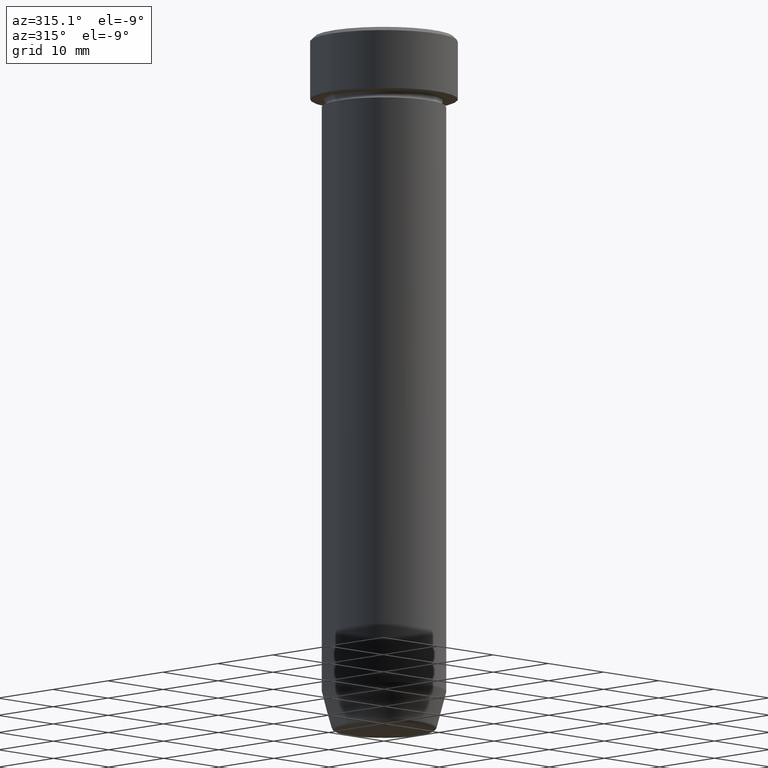
[diagram: clean part render]
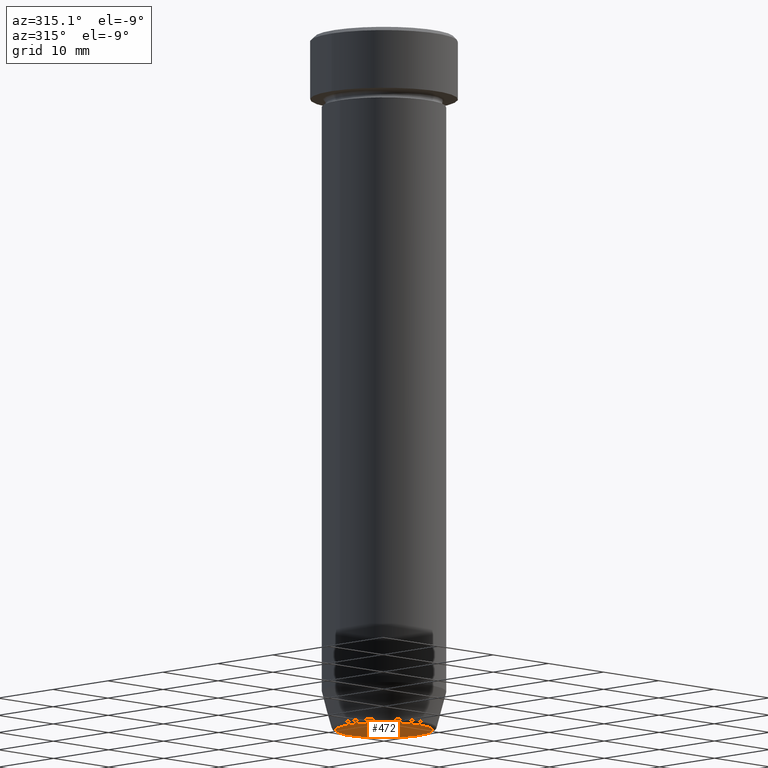
[diagram: same view with one face highlighted and labeled with its STEP entity id]
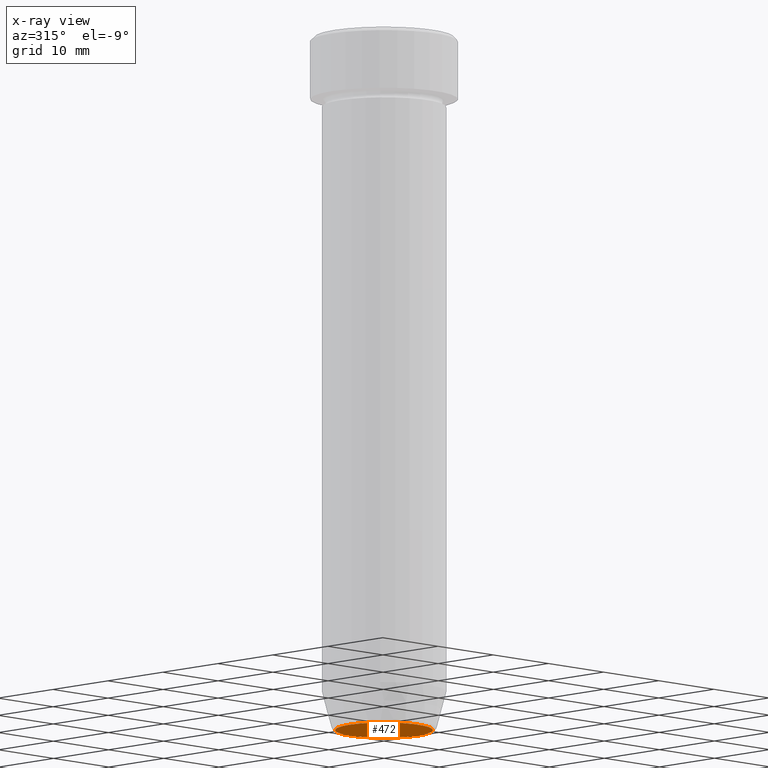
[diagram: x-ray of the same camera — body ghosted, the highlighted face saturated]
A machine part, auxiliary view. The second image highlights one B-rep face of the part: STEP entity #472.
The next image is the same camera in x-ray: the body ghosted, the highlighted face saturated — about 0% of this face is hidden behind the body in this view.
In plain terms, the highlighted planar face has unit normal (0, -0, 1).
Its self-contained STEP definition (entity closure, byte-faithful):
#27 = VERTEX_POINT ( 'NONE', #196 ) ;
#36 = AXIS2_PLACEMENT_3D ( 'NONE', #475, #66, #417 ) ;
#52 = EDGE_LOOP ( 'NONE', ( #113, #343 ) ) ;
#66 = DIRECTION ( 'NONE',  ( 0.000000000000000000, -0.000000000000000000, 1.000000000000000000 ) ) ;
#86 = EDGE_CURVE ( 'NONE', #373, #27, #440, .T. ) ;
#113 = ORIENTED_EDGE ( 'NONE', *, *, #433, .T. ) ;
#169 = AXIS2_PLACEMENT_3D ( 'NONE', #448, #447, #300 ) ;
#187 = AXIS2_PLACEMENT_3D ( 'NONE', #505, #333, #234 ) ;
#191 = CARTESIAN_POINT ( 'NONE',  ( -6.276590543854900339, 7.982336011935116411E-16, -90.00000000000000000 ) ) ;
#196 = CARTESIAN_POINT ( 'NONE',  ( 6.276590543854900339, 0.000000000000000000, -90.00000000000000000 ) ) ;
#234 = DIRECTION ( 'NONE',  ( 1.000000000000000000, 0.000000000000000000, 0.000000000000000000 ) ) ;
#300 = DIRECTION ( 'NONE',  ( 1.000000000000000000, 0.000000000000000000, 0.000000000000000000 ) ) ;
#333 = DIRECTION ( 'NONE',  ( 0.000000000000000000, 0.000000000000000000, -1.000000000000000000 ) ) ;
#343 = ORIENTED_EDGE ( 'NONE', *, *, #86, .T. ) ;
#368 = CIRCLE ( 'NONE', #187, 6.276590543854900339 ) ;
#373 = VERTEX_POINT ( 'NONE', #191 ) ;
#417 = DIRECTION ( 'NONE',  ( 1.000000000000000000, 0.000000000000000000, 0.000000000000000000 ) ) ;
#430 = FACE_OUTER_BOUND ( 'NONE', #52, .T. ) ;
#433 = EDGE_CURVE ( 'NONE', #27, #373, #368, .T. ) ;
#440 = CIRCLE ( 'NONE', #169, 6.276590543854900339 ) ;
#447 = DIRECTION ( 'NONE',  ( 0.000000000000000000, 0.000000000000000000, -1.000000000000000000 ) ) ;
#448 = CARTESIAN_POINT ( 'NONE',  ( 0.000000000000000000, 0.000000000000000000, -90.00000000000000000 ) ) ;
#472 = ADVANCED_FACE ( 'NONE', ( #430 ), #522, .F. ) ;
#475 = CARTESIAN_POINT ( 'NONE',  ( 0.000000000000000000, 4.898587196589413815E-15, -90.00000000000000000 ) ) ;
#505 = CARTESIAN_POINT ( 'NONE',  ( 0.000000000000000000, 0.000000000000000000, -90.00000000000000000 ) ) ;
#522 = PLANE ( 'NONE',  #36 ) ;